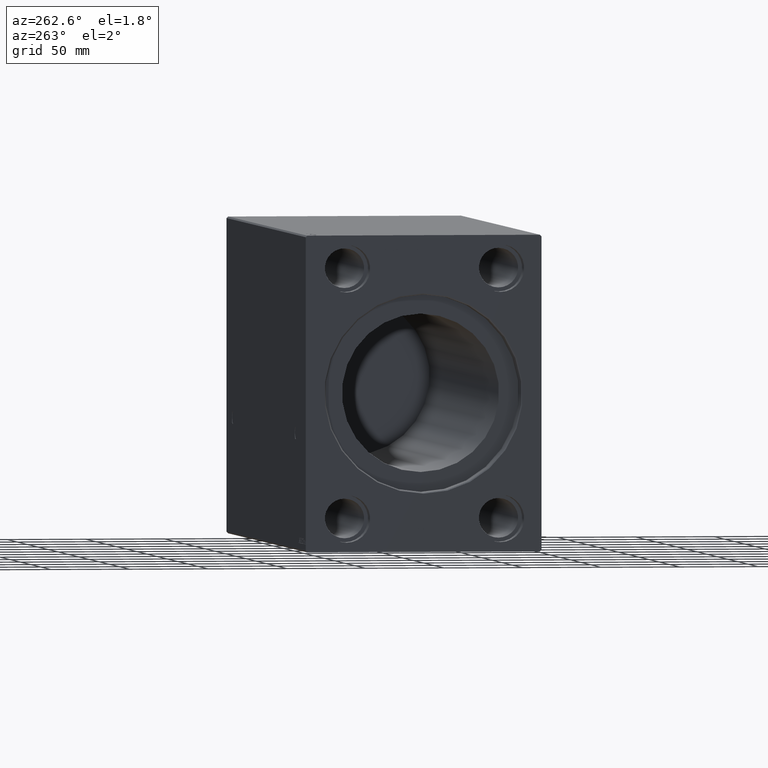
[diagram: clean part render]
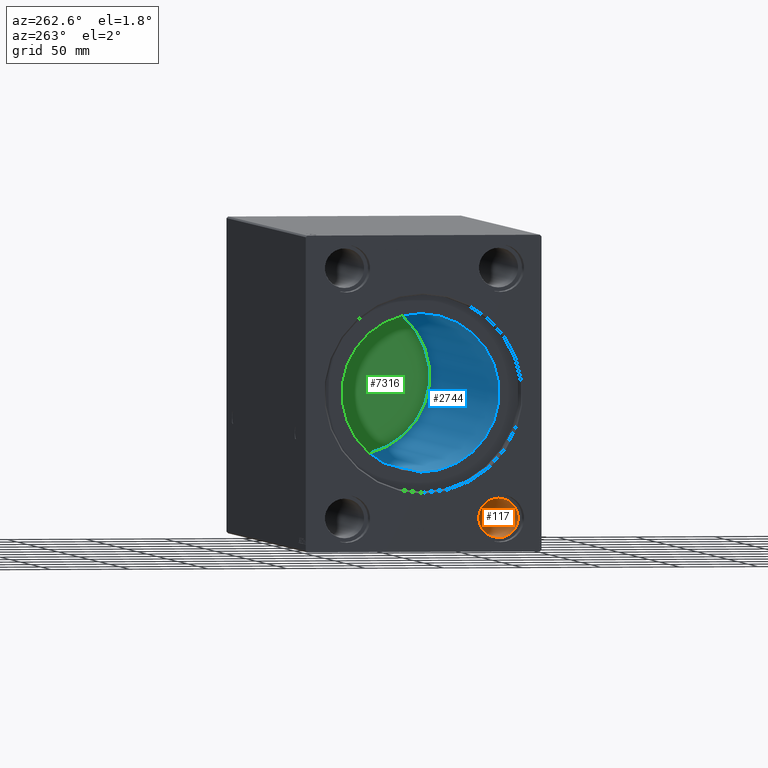
[diagram: same view with three faces highlighted in distinct colors, each labeled with its STEP entity id]
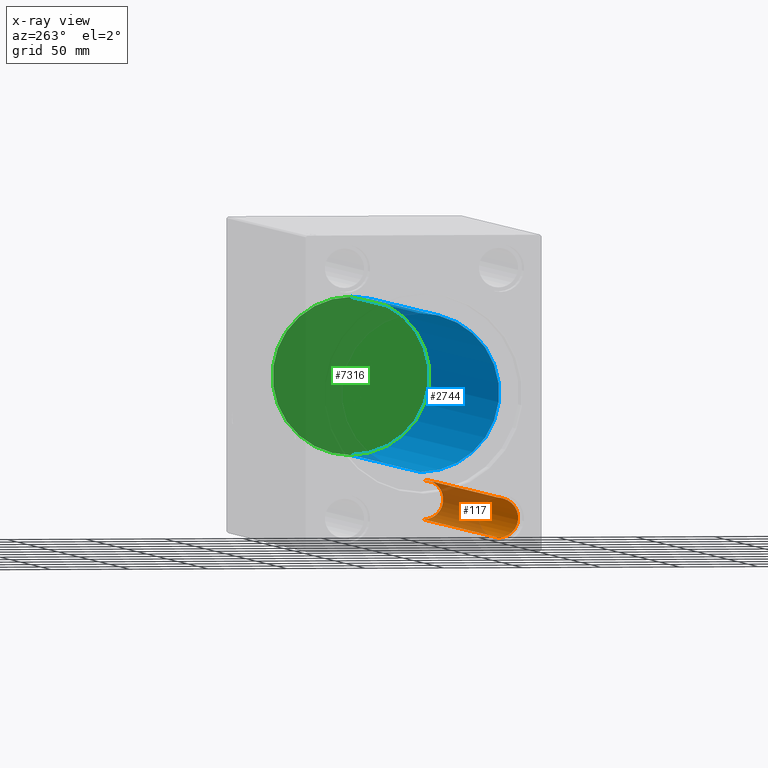
[diagram: x-ray of the same camera — body ghosted, the three highlighted faces saturated]
A machine part, auxiliary view with three faces highlighted in distinct colors.
The next image is the same camera in x-ray (body ghosted, the three faces saturated) — at least one of them is partly hidden behind the body in this view.
Their STEP definitions:

[orange] entity #117 — the highlighted cylindrical surface (edge-blend (fillet) strip) has radius 12.5 mm, axis along (-1, -0, -0).
#117 = ADVANCED_FACE ( 'NONE', ( #25133 ), #34588, .F. ) ;
#1183 = VECTOR ( 'NONE', #32274, 1000.000000000000000 ) ;
#2641 = CARTESIAN_POINT ( 'NONE',  ( 10.33000000000000540, -48.99999999999999289, -91.50000000000002842 ) ) ;
#2880 = CARTESIAN_POINT ( 'NONE',  ( 377.6700000000000159, -48.99999999999999289, -79.00000000000001421 ) ) ;
#4196 = VERTEX_POINT ( 'NONE', #16587 ) ;
#5534 = CIRCLE ( 'NONE', #14409, 12.50000000000001066 ) ;
#6721 = DIRECTION ( 'NONE',  ( -1.000000000000000000, 0.000000000000000000, 0.000000000000000000 ) ) ;
#8201 = AXIS2_PLACEMENT_3D ( 'NONE', #33461, #10245, #26569 ) ;
#9533 = ORIENTED_EDGE ( 'NONE', *, *, #15437, .F. ) ;
#10245 = DIRECTION ( 'NONE',  ( 1.000000000000000000, -0.000000000000000000, -0.000000000000000000 ) ) ;
#10271 = ORIENTED_EDGE ( 'NONE', *, *, #32953, .F. ) ;
#12394 = LINE ( 'NONE', #28716, #36088 ) ;
#14409 = AXIS2_PLACEMENT_3D ( 'NONE', #2880, #6721, #32520 ) ;
#15248 = DIRECTION ( 'NONE',  ( 0.000000000000000000, 0.000000000000000000, 1.000000000000000000 ) ) ;
#15437 = EDGE_CURVE ( 'NONE', #41782, #4196, #12394, .T. ) ;
#15828 = CARTESIAN_POINT ( 'NONE',  ( 377.6700000000000159, -48.99999999999999289, -91.50000000000002842 ) ) ;
#16587 = CARTESIAN_POINT ( 'NONE',  ( 10.33000000000000540, -48.99999999999999289, -66.50000000000000000 ) ) ;
#16870 = VERTEX_POINT ( 'NONE', #2641 ) ;
#17457 = CARTESIAN_POINT ( 'NONE',  ( 377.6700000000000159, -48.99999999999999289, -66.50000000000000000 ) ) ;
#17922 = ORIENTED_EDGE ( 'NONE', *, *, #32364, .F. ) ;
#18254 = DIRECTION ( 'NONE',  ( -1.000000000000000000, -0.000000000000000000, -0.000000000000000000 ) ) ;
#18942 = CARTESIAN_POINT ( 'NONE',  ( 388.0000000000000000, -48.99999999999999289, -91.50000000000002842 ) ) ;
#19755 = EDGE_CURVE ( 'NONE', #28181, #16870, #39340, .T. ) ;
#24907 = CARTESIAN_POINT ( 'NONE',  ( 388.0000000000000000, -48.99999999999999289, -79.00000000000001421 ) ) ;
#25133 = FACE_OUTER_BOUND ( 'NONE', #29656, .T. ) ;
#25711 = DIRECTION ( 'NONE',  ( -1.000000000000000000, -0.000000000000000000, -0.000000000000000000 ) ) ;
#26569 = DIRECTION ( 'NONE',  ( 0.000000000000000000, 0.000000000000000000, -1.000000000000000000 ) ) ;
#27629 = AXIS2_PLACEMENT_3D ( 'NONE', #24907, #18254, #15248 ) ;
#28181 = VERTEX_POINT ( 'NONE', #15828 ) ;
#28716 = CARTESIAN_POINT ( 'NONE',  ( 388.0000000000000000, -48.99999999999999289, -66.50000000000000000 ) ) ;
#29656 = EDGE_LOOP ( 'NONE', ( #10271, #38888, #17922, #9533 ) ) ;
#30172 = CIRCLE ( 'NONE', #8201, 12.50000000000001066 ) ;
#32274 = DIRECTION ( 'NONE',  ( -1.000000000000000000, -0.000000000000000000, -0.000000000000000000 ) ) ;
#32364 = EDGE_CURVE ( 'NONE', #4196, #16870, #30172, .T. ) ;
#32520 = DIRECTION ( 'NONE',  ( 0.000000000000000000, 0.000000000000000000, 1.000000000000000000 ) ) ;
#32953 = EDGE_CURVE ( 'NONE', #28181, #41782, #5534, .T. ) ;
#33461 = CARTESIAN_POINT ( 'NONE',  ( 10.33000000000000540, -48.99999999999999289, -79.00000000000001421 ) ) ;
#34588 = CYLINDRICAL_SURFACE ( 'NONE', #27629, 12.50000000000001066 ) ;
#36088 = VECTOR ( 'NONE', #25711, 1000.000000000000000 ) ;
#38888 = ORIENTED_EDGE ( 'NONE', *, *, #19755, .T. ) ;
#39340 = LINE ( 'NONE', #18942, #1183 ) ;
#41782 = VERTEX_POINT ( 'NONE', #17457 ) ;

[blue] entity #2744 — the highlighted cylindrical surface (partial cylindrical patch) has radius 50 mm, axis along (-1, -0, -0).
#84 = ORIENTED_EDGE ( 'NONE', *, *, #8233, .F. ) ;
#1150 = CARTESIAN_POINT ( 'NONE',  ( 354.6999999999999886, 6.123233995736766085E-15, -50.00000000000000000 ) ) ;
#2744 = ADVANCED_FACE ( 'NONE', ( #5237 ), #37888, .F. ) ;
#4464 = EDGE_CURVE ( 'NONE', #16511, #26508, #29787, .T. ) ;
#4913 = VERTEX_POINT ( 'NONE', #26476 ) ;
#5237 = FACE_OUTER_BOUND ( 'NONE', #25715, .T. ) ;
#8233 = EDGE_CURVE ( 'NONE', #4913, #26508, #15695, .T. ) ;
#10433 = VERTEX_POINT ( 'NONE', #32216 ) ;
#11673 = DIRECTION ( 'NONE',  ( -1.000000000000000000, -0.000000000000000000, -0.000000000000000000 ) ) ;
#12037 = CARTESIAN_POINT ( 'NONE',  ( 354.6999999999999886, 0.000000000000000000, 50.00000000000000000 ) ) ;
#12805 = CIRCLE ( 'NONE', #29243, 50.00000000000000000 ) ;
#13990 = AXIS2_PLACEMENT_3D ( 'NONE', #31824, #39328, #22780 ) ;
#14262 = DIRECTION ( 'NONE',  ( 0.000000000000000000, 0.000000000000000000, 1.000000000000000000 ) ) ;
#14369 = ORIENTED_EDGE ( 'NONE', *, *, #4464, .T. ) ;
#14389 = DIRECTION ( 'NONE',  ( 0.000000000000000000, 0.000000000000000000, 1.000000000000000000 ) ) ;
#15068 = VECTOR ( 'NONE', #21523, 1000.000000000000000 ) ;
#15695 = LINE ( 'NONE', #12037, #35372 ) ;
#16129 = EDGE_CURVE ( 'NONE', #10433, #4913, #12805, .T. ) ;
#16511 = VERTEX_POINT ( 'NONE', #39706 ) ;
#20415 = CARTESIAN_POINT ( 'NONE',  ( 354.6999999999999886, 0.000000000000000000, 0.000000000000000000 ) ) ;
#20816 = AXIS2_PLACEMENT_3D ( 'NONE', #40671, #11673, #14262 ) ;
#21523 = DIRECTION ( 'NONE',  ( -1.000000000000000000, -0.000000000000000000, -0.000000000000000000 ) ) ;
#21758 = CARTESIAN_POINT ( 'NONE',  ( 15.00000000000001421, 0.000000000000000000, 50.00000000000000000 ) ) ;
#22780 = DIRECTION ( 'NONE',  ( 0.000000000000000000, 0.000000000000000000, 1.000000000000000000 ) ) ;
#25715 = EDGE_LOOP ( 'NONE', ( #27812, #37548, #14369, #84 ) ) ;
#26476 = CARTESIAN_POINT ( 'NONE',  ( 354.6999999999999886, 0.000000000000000000, 50.00000000000000000 ) ) ;
#26508 = VERTEX_POINT ( 'NONE', #21758 ) ;
#26710 = LINE ( 'NONE', #1150, #15068 ) ;
#27812 = ORIENTED_EDGE ( 'NONE', *, *, #16129, .F. ) ;
#29243 = AXIS2_PLACEMENT_3D ( 'NONE', #20415, #30708, #14389 ) ;
#29787 = CIRCLE ( 'NONE', #13990, 50.00000000000000000 ) ;
#30347 = EDGE_CURVE ( 'NONE', #10433, #16511, #26710, .T. ) ;
#30708 = DIRECTION ( 'NONE',  ( -1.000000000000000000, 0.000000000000000000, 0.000000000000000000 ) ) ;
#31824 = CARTESIAN_POINT ( 'NONE',  ( 15.00000000000001421, 0.000000000000000000, 0.000000000000000000 ) ) ;
#32216 = CARTESIAN_POINT ( 'NONE',  ( 354.6999999999999886, 6.123233995736766085E-15, -50.00000000000000000 ) ) ;
#35372 = VECTOR ( 'NONE', #41479, 1000.000000000000000 ) ;
#37548 = ORIENTED_EDGE ( 'NONE', *, *, #30347, .T. ) ;
#37888 = CYLINDRICAL_SURFACE ( 'NONE', #20816, 50.00000000000000000 ) ;
#39328 = DIRECTION ( 'NONE',  ( -1.000000000000000000, 0.000000000000000000, 0.000000000000000000 ) ) ;
#39706 = CARTESIAN_POINT ( 'NONE',  ( 15.00000000000001421, 6.123233995736766085E-15, -50.00000000000000000 ) ) ;
#40671 = CARTESIAN_POINT ( 'NONE',  ( 354.6999999999999886, 0.000000000000000000, 0.000000000000000000 ) ) ;
#41479 = DIRECTION ( 'NONE',  ( -1.000000000000000000, -0.000000000000000000, -0.000000000000000000 ) ) ;

[green] entity #7316 — the highlighted planar face has unit normal (-1, 0, 0).
#1123 = CIRCLE ( 'NONE', #22411, 50.00000000000000000 ) ;
#4913 = VERTEX_POINT ( 'NONE', #26476 ) ;
#6318 = EDGE_LOOP ( 'NONE', ( #11305, #7993 ) ) ;
#7316 = ADVANCED_FACE ( 'NONE', ( #38881 ), #25340, .T. ) ;
#7993 = ORIENTED_EDGE ( 'NONE', *, *, #16129, .T. ) ;
#8748 = DIRECTION ( 'NONE',  ( 0.000000000000000000, 0.000000000000000000, 1.000000000000000000 ) ) ;
#9006 = DIRECTION ( 'NONE',  ( -1.000000000000000000, 0.000000000000000000, 0.000000000000000000 ) ) ;
#10433 = VERTEX_POINT ( 'NONE', #32216 ) ;
#11305 = ORIENTED_EDGE ( 'NONE', *, *, #16626, .T. ) ;
#12805 = CIRCLE ( 'NONE', #29243, 50.00000000000000000 ) ;
#14389 = DIRECTION ( 'NONE',  ( 0.000000000000000000, 0.000000000000000000, 1.000000000000000000 ) ) ;
#14548 = DIRECTION ( 'NONE',  ( -1.000000000000000000, 0.000000000000000000, 0.000000000000000000 ) ) ;
#16129 = EDGE_CURVE ( 'NONE', #10433, #4913, #12805, .T. ) ;
#16626 = EDGE_CURVE ( 'NONE', #4913, #10433, #1123, .T. ) ;
#20415 = CARTESIAN_POINT ( 'NONE',  ( 354.6999999999999886, 0.000000000000000000, 0.000000000000000000 ) ) ;
#22104 = DIRECTION ( 'NONE',  ( 0.000000000000000000, 0.000000000000000000, 1.000000000000000000 ) ) ;
#22411 = AXIS2_PLACEMENT_3D ( 'NONE', #31093, #14548, #8748 ) ;
#25340 = PLANE ( 'NONE',  #32637 ) ;
#26476 = CARTESIAN_POINT ( 'NONE',  ( 354.6999999999999886, 0.000000000000000000, 50.00000000000000000 ) ) ;
#29243 = AXIS2_PLACEMENT_3D ( 'NONE', #20415, #30708, #14389 ) ;
#30708 = DIRECTION ( 'NONE',  ( -1.000000000000000000, 0.000000000000000000, 0.000000000000000000 ) ) ;
#31093 = CARTESIAN_POINT ( 'NONE',  ( 354.6999999999999886, 0.000000000000000000, 0.000000000000000000 ) ) ;
#32216 = CARTESIAN_POINT ( 'NONE',  ( 354.6999999999999886, 6.123233995736766085E-15, -50.00000000000000000 ) ) ;
#32637 = AXIS2_PLACEMENT_3D ( 'NONE', #38458, #9006, #22104 ) ;
#38458 = CARTESIAN_POINT ( 'NONE',  ( 354.6999999999999886, 0.000000000000000000, 0.000000000000000000 ) ) ;
#38881 = FACE_OUTER_BOUND ( 'NONE', #6318, .T. ) ;